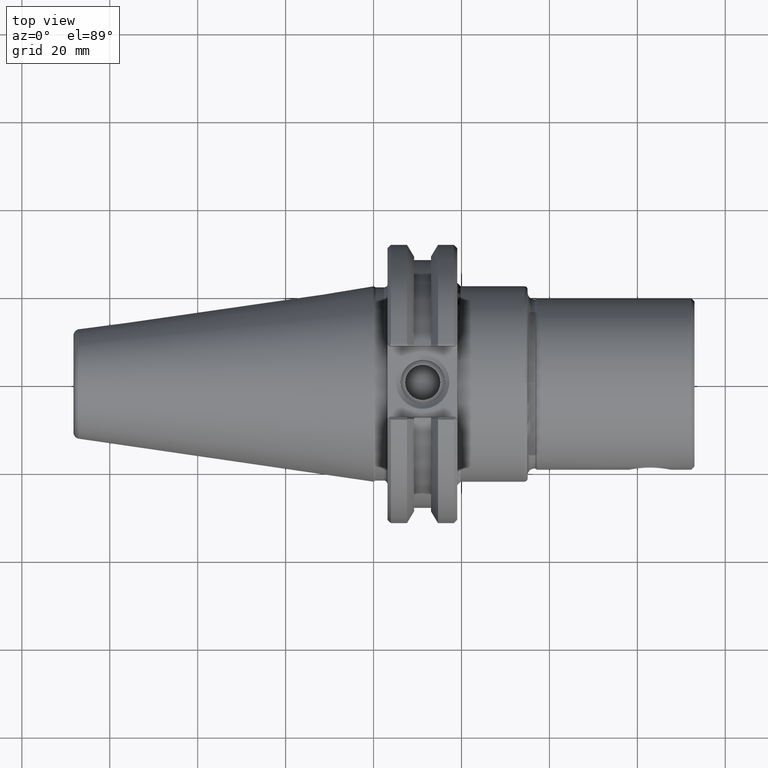
[diagram: clean part render]
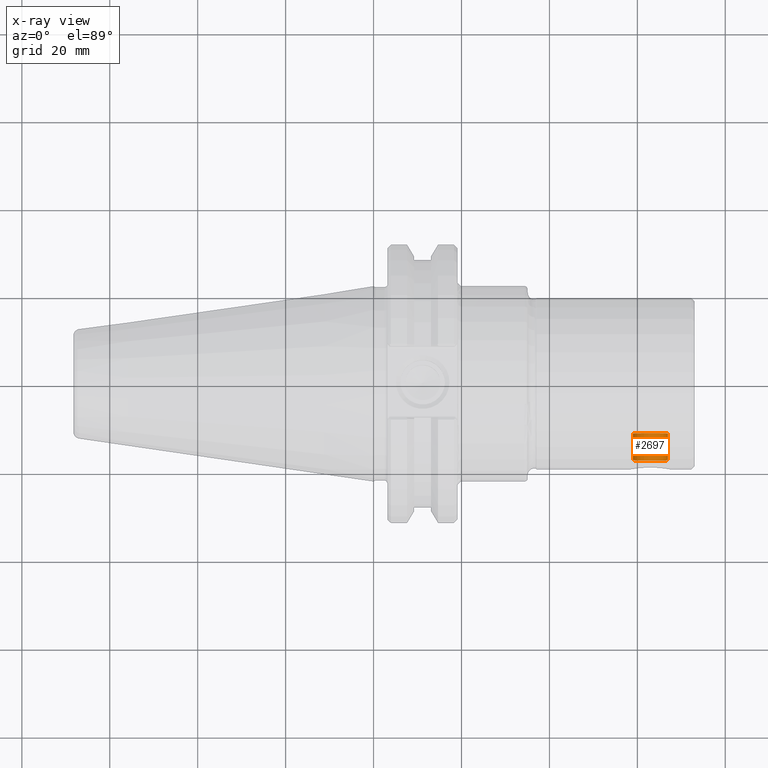
[diagram: x-ray — body ghosted, one internal face saturated and labeled with its STEP entity id]
A machine part, top view, then the same camera in x-ray: the body is ghosted and one INTERNAL B-rep face — a face not visible from any outside direction — is saturated and labeled: STEP entity #2697.
In plain terms, the highlighted cylindrical surface (bore or boss wall) has radius 4.0005 mm, axis along (-0, 1, 0).
Its self-contained STEP definition (entity closure, byte-faithful):
#368=LINE('',#5916,#544);
#544=VECTOR('',#3822,0.157500000000001);
#583=CYLINDRICAL_SURFACE('',#3060,0.157500000000001);
#729=FACE_OUTER_BOUND('',#882,.T.);
#882=EDGE_LOOP('',(#2541,#2542,#2543,#2544,#2545,#2546));
#1013=CIRCLE('',#3052,0.157500000000001);
#1014=CIRCLE('',#3053,0.157500000000001);
#1015=CIRCLE('',#3056,0.157500000000001);
#1016=CIRCLE('',#3057,0.157500000000001);
#1327=VERTEX_POINT('',#5900);
#1328=VERTEX_POINT('',#5902);
#1329=VERTEX_POINT('',#5907);
#1330=VERTEX_POINT('',#5908);
#1730=EDGE_CURVE('',#1327,#1328,#1013,.T.);
#1731=EDGE_CURVE('',#1328,#1327,#1014,.T.);
#1732=EDGE_CURVE('',#1329,#1330,#1015,.T.);
#1733=EDGE_CURVE('',#1330,#1329,#1016,.T.);
#1736=EDGE_CURVE('',#1327,#1330,#368,.T.);
#2541=ORIENTED_EDGE('',*,*,#1731,.F.);
#2542=ORIENTED_EDGE('',*,*,#1730,.F.);
#2543=ORIENTED_EDGE('',*,*,#1736,.T.);
#2544=ORIENTED_EDGE('',*,*,#1732,.F.);
#2545=ORIENTED_EDGE('',*,*,#1733,.F.);
#2546=ORIENTED_EDGE('',*,*,#1736,.F.);
#2697=ADVANCED_FACE('',(#729),#583,.T.);
#3052=AXIS2_PLACEMENT_3D('',#5903,#3803,#3804);
#3053=AXIS2_PLACEMENT_3D('',#5904,#3805,#3806);
#3056=AXIS2_PLACEMENT_3D('',#5909,#3811,#3812);
#3057=AXIS2_PLACEMENT_3D('',#5910,#3813,#3814);
#3060=AXIS2_PLACEMENT_3D('',#5915,#3820,#3821);
#3803=DIRECTION('center_axis',(0.,-1.,0.));
#3804=DIRECTION('ref_axis',(1.,0.,0.));
#3805=DIRECTION('center_axis',(0.,-1.,0.));
#3806=DIRECTION('ref_axis',(1.,0.,0.));
#3811=DIRECTION('center_axis',(0.,1.,0.));
#3812=DIRECTION('ref_axis',(-1.,0.,0.));
#3813=DIRECTION('center_axis',(0.,1.,0.));
#3814=DIRECTION('ref_axis',(-1.,0.,0.));
#3820=DIRECTION('center_axis',(0.,-1.,0.));
#3821=DIRECTION('ref_axis',(1.,0.,0.));
#3822=DIRECTION('',(0.,1.,0.));
#5900=CARTESIAN_POINT('',(-0.216525588832578,-0.142655789870755,-1.92881870865709E-17));
#5902=CARTESIAN_POINT('',(0.0984744111674232,-0.142655789870755,0.));
#5903=CARTESIAN_POINT('Origin',(-0.0590255888325775,-0.142655789870755,
0.));
#5904=CARTESIAN_POINT('Origin',(-0.0590255888325775,-0.142655789870755,
0.));
#5907=CARTESIAN_POINT('',(0.0984744111674232,0.0979999999999992,-1.92875500727025E-17));
#5908=CARTESIAN_POINT('',(-0.216525588832578,0.0979999999999992,-1.92881870865709E-17));
#5909=CARTESIAN_POINT('Origin',(-0.0590255888325775,0.0979999999999992,
0.));
#5910=CARTESIAN_POINT('Origin',(-0.0590255888325775,0.0979999999999992,
0.));
#5915=CARTESIAN_POINT('Origin',(-0.0590255888325775,-0.00732789493537772,
0.));
#5916=CARTESIAN_POINT('',(-0.216525588832578,-0.00732789493537772,-1.92881870865709E-17));